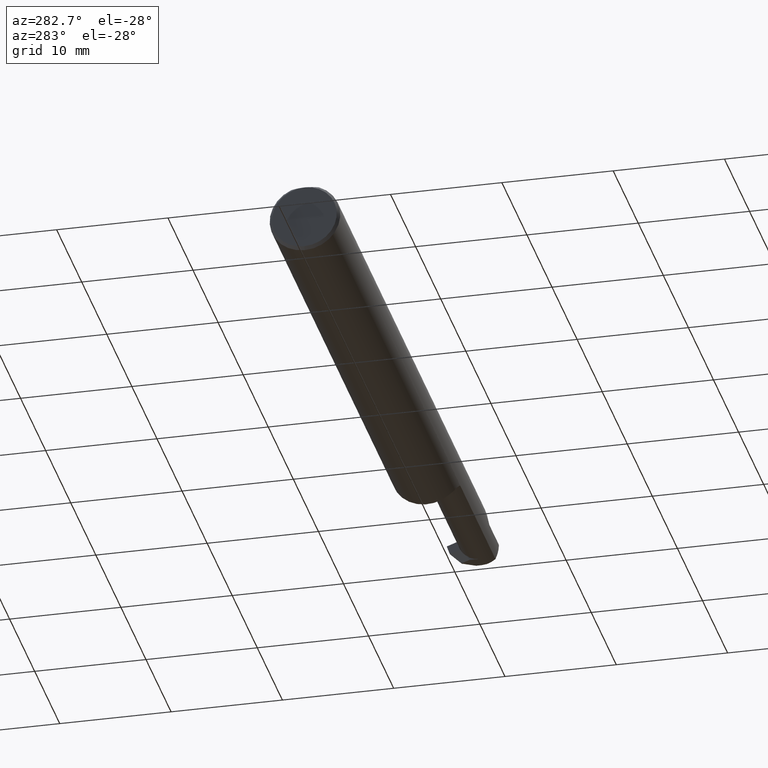
[diagram: clean part render]
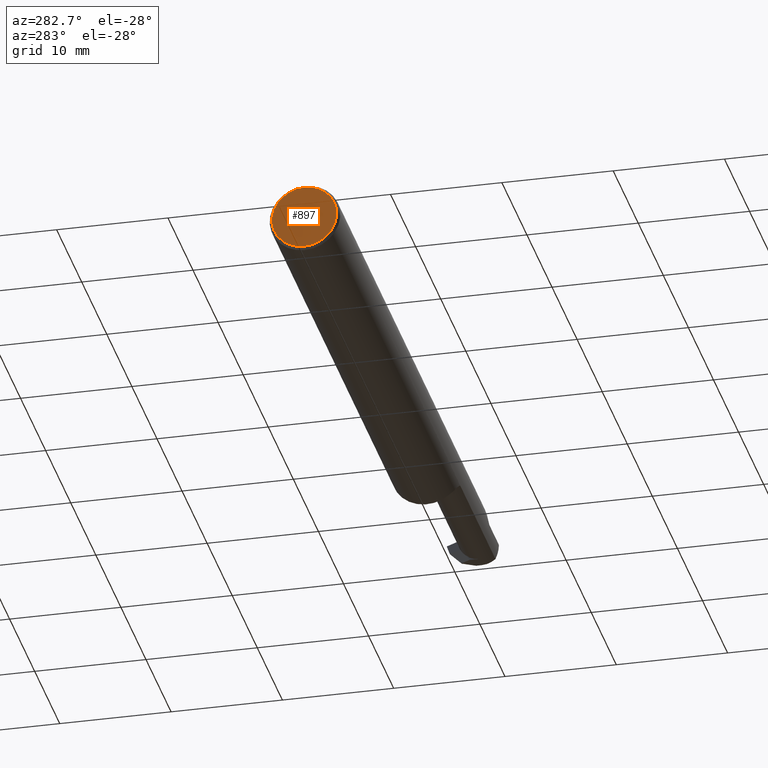
[diagram: same view with one face highlighted and labeled with its STEP entity id]
A machine part, auxiliary view. The second image highlights one B-rep face of the part: STEP entity #897.
In plain terms, the highlighted planar face has unit normal (1, 0, 0).
Its self-contained STEP definition (entity closure, byte-faithful):
#30 = VERTEX_POINT ( 'NONE', #571 ) ;
#75 = DIRECTION ( 'NONE',  ( 0.000000000000000000, 0.000000000000000000, -1.000000000000000000 ) ) ;
#140 = DIRECTION ( 'NONE',  ( -1.000000000000000000, -0.000000000000000000, -0.000000000000000000 ) ) ;
#172 = ORIENTED_EDGE ( 'NONE', *, *, #886, .T. ) ;
#176 = EDGE_LOOP ( 'NONE', ( #292, #172 ) ) ;
#201 = DIRECTION ( 'NONE',  ( 0.000000000000000000, 0.000000000000000000, -1.000000000000000000 ) ) ;
#206 = CARTESIAN_POINT ( 'NONE',  ( 0.000000000000000000, 0.000000000000000000, 0.000000000000000000 ) ) ;
#229 = AXIS2_PLACEMENT_3D ( 'NONE', #421, #685, #903 ) ;
#289 = CIRCLE ( 'NONE', #619, 0.1148500000000000076 ) ;
#290 = FACE_OUTER_BOUND ( 'NONE', #176, .T. ) ;
#292 = ORIENTED_EDGE ( 'NONE', *, *, #893, .T. ) ;
#345 = AXIS2_PLACEMENT_3D ( 'NONE', #418, #694, #201 ) ;
#418 = CARTESIAN_POINT ( 'NONE',  ( 0.000000000000000000, 0.000000000000000000, 0.000000000000000000 ) ) ;
#421 = CARTESIAN_POINT ( 'NONE',  ( 0.000000000000000000, 0.000000000000000000, 0.000000000000000000 ) ) ;
#454 = VERTEX_POINT ( 'NONE', #564 ) ;
#479 = PLANE ( 'NONE',  #229 ) ;
#564 = CARTESIAN_POINT ( 'NONE',  ( 0.000000000000000000, 0.000000000000000000, -0.1148500000000000076 ) ) ;
#571 = CARTESIAN_POINT ( 'NONE',  ( 0.000000000000000000, 0.000000000000000000, 0.1148499999999999521 ) ) ;
#619 = AXIS2_PLACEMENT_3D ( 'NONE', #206, #140, #75 ) ;
#685 = DIRECTION ( 'NONE',  ( 1.000000000000000000, 0.000000000000000000, 0.000000000000000000 ) ) ;
#694 = DIRECTION ( 'NONE',  ( -1.000000000000000000, -0.000000000000000000, -0.000000000000000000 ) ) ;
#764 = CIRCLE ( 'NONE', #345, 0.1148500000000000076 ) ;
#886 = EDGE_CURVE ( 'NONE', #454, #30, #289, .T. ) ;
#893 = EDGE_CURVE ( 'NONE', #30, #454, #764, .T. ) ;
#897 = ADVANCED_FACE ( 'NONE', ( #290 ), #479, .F. ) ;
#903 = DIRECTION ( 'NONE',  ( 0.000000000000000000, 0.000000000000000000, -1.000000000000000000 ) ) ;